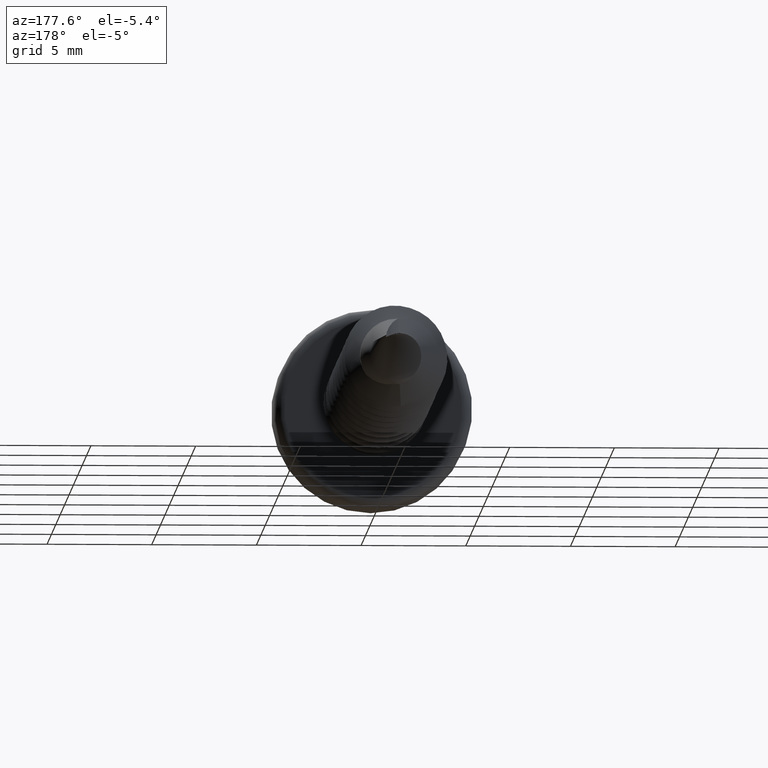
[diagram: clean part render]
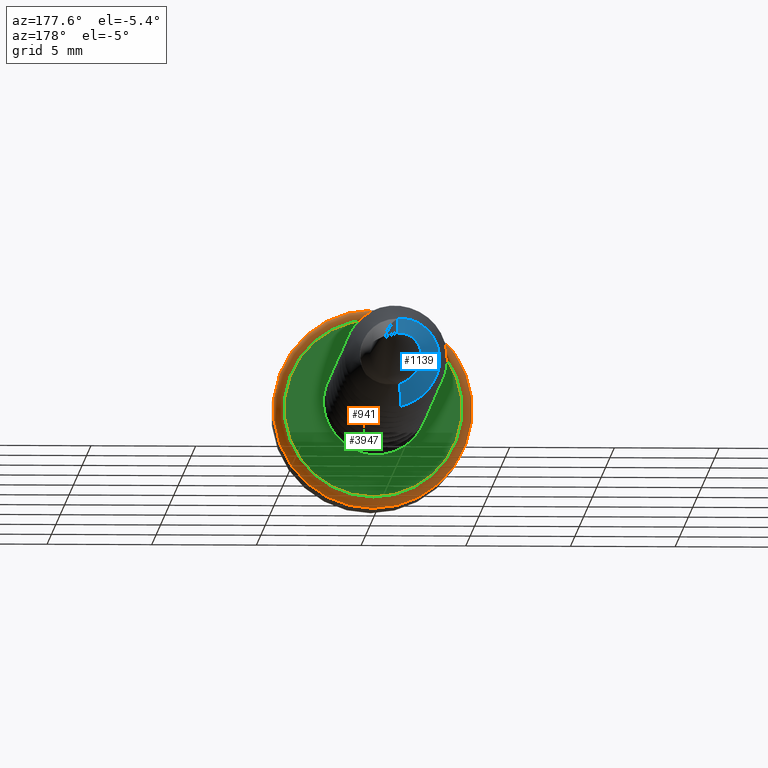
[diagram: same view with three faces highlighted in distinct colors, each labeled with its STEP entity id]
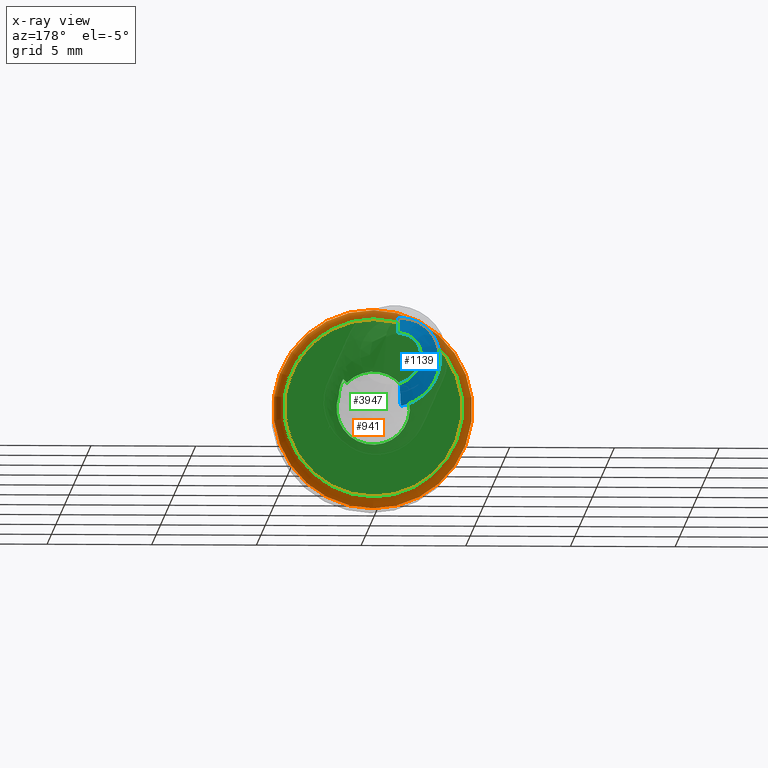
[diagram: x-ray of the same camera — body ghosted, the three highlighted faces saturated]
A machine part, auxiliary view with three faces highlighted in distinct colors.
The next image is the same camera in x-ray (body ghosted, the three faces saturated) — at least one of them is partly hidden behind the body in this view.
Their STEP definitions:

[orange] entity #941 — the highlighted toroidal blend (fillet) surface has major radius 4.25 mm and minor (blend) radius 0.5 mm.
#47 = AXIS2_PLACEMENT_3D ( 'NONE', #2755, #1521, #3463 ) ;
#758 = CARTESIAN_POINT ( 'NONE',  ( 0.000000000000000000, 3.299999999999999822, 0.000000000000000000 ) ) ;
#924 = AXIS2_PLACEMENT_3D ( 'NONE', #758, #1359, #3678 ) ;
#941 = ADVANCED_FACE ( 'NONE', ( #3915, #2743 ), #3801, .T. ) ;
#1359 = DIRECTION ( 'NONE',  ( -0.000000000000000000, -1.000000000000000000, -0.000000000000000000 ) ) ;
#1400 = CARTESIAN_POINT ( 'NONE',  ( 0.000000000000000000, 3.299999999999999822, 0.000000000000000000 ) ) ;
#1521 = DIRECTION ( 'NONE',  ( 0.000000000000000000, 1.000000000000000000, 0.000000000000000000 ) ) ;
#1890 = CARTESIAN_POINT ( 'NONE',  ( 0.000000000000000000, 3.299999999999999822, 4.749999999999999112 ) ) ;
#2013 = DIRECTION ( 'NONE',  ( 0.000000000000000000, 1.000000000000000000, 0.000000000000000000 ) ) ;
#2065 = EDGE_CURVE ( 'NONE', #3264, #3264, #4127, .T. ) ;
#2674 = DIRECTION ( 'NONE',  ( 0.000000000000000000, 0.000000000000000000, 1.000000000000000000 ) ) ;
#2743 = FACE_OUTER_BOUND ( 'NONE', #3244, .T. ) ;
#2755 = CARTESIAN_POINT ( 'NONE',  ( 0.000000000000000000, 3.799999999999999822, 0.000000000000000000 ) ) ;
#2850 = CARTESIAN_POINT ( 'NONE',  ( 0.000000000000000000, 3.799999999999999822, 4.249999999999998224 ) ) ;
#2914 = AXIS2_PLACEMENT_3D ( 'NONE', #1400, #2013, #2674 ) ;
#3244 = EDGE_LOOP ( 'NONE', ( #3290 ) ) ;
#3264 = VERTEX_POINT ( 'NONE', #1890 ) ;
#3290 = ORIENTED_EDGE ( 'NONE', *, *, #2065, .F. ) ;
#3463 = DIRECTION ( 'NONE',  ( 0.000000000000000000, 0.000000000000000000, 1.000000000000000000 ) ) ;
#3568 = CIRCLE ( 'NONE', #47, 4.249999999999998224 ) ;
#3661 = ORIENTED_EDGE ( 'NONE', *, *, #3952, .F. ) ;
#3678 = DIRECTION ( 'NONE',  ( 0.000000000000000000, 0.000000000000000000, 1.000000000000000000 ) ) ;
#3705 = EDGE_LOOP ( 'NONE', ( #3661 ) ) ;
#3801 = TOROIDAL_SURFACE ( 'NONE', #2914, 4.249999999999998224, 0.5000000000000000000 ) ;
#3879 = VERTEX_POINT ( 'NONE', #2850 ) ;
#3915 = FACE_OUTER_BOUND ( 'NONE', #3705, .T. ) ;
#3952 = EDGE_CURVE ( 'NONE', #3879, #3879, #3568, .T. ) ;
#4127 = CIRCLE ( 'NONE', #924, 4.749999999999999112 ) ;

[blue] entity #1139 — the highlighted face is a freeform B-spline surface patch.
#12 = EDGE_CURVE ( 'NONE', #167, #2429, #3433, .T. ) ;
#71 = CARTESIAN_POINT ( 'NONE',  ( -1.131080142599305338, 31.63333333333033437, 1.476056850587637914 ) ) ;
#72 = DIRECTION ( 'NONE',  ( 0.000000000000000000, -0.4999999999999867328, 0.8660254037844463681 ) ) ;
#167 = VERTEX_POINT ( 'NONE', #917 ) ;
#210 = CARTESIAN_POINT ( 'NONE',  ( -1.130129643550159102, 30.96666666666739687, -2.082345548311373307 ) ) ;
#233 = EDGE_CURVE ( 'NONE', #167, #960, #504, .T. ) ;
#240 = CARTESIAN_POINT ( 'NONE',  ( -0.4895064963969604221, 31.26823720570182275, -1.684133936802407971 ) ) ;
#248 = ORIENTED_EDGE ( 'NONE', *, *, #12, .F. ) ;
#250 = CARTESIAN_POINT ( 'NONE',  ( -0.6741099403907235832, 30.88328610388313322, -2.338630511723126748 ) ) ;
#257 = CARTESIAN_POINT ( 'NONE',  ( -0.1109964166129068647, 31.37735026918959846, -1.445745411716424567 ) ) ;
#273 = CARTESIAN_POINT ( 'NONE',  ( -0.7719652574579886073, 31.60744961406056319, -1.003242431223988484 ) ) ;
#281 = CARTESIAN_POINT ( 'NONE',  ( -0.6071034396000936084, 31.53075565104700928, -1.207061627406955662 ) ) ;
#334 = CARTESIAN_POINT ( 'NONE',  ( -0.2262075949405988884, 32.18089244603743282, 0.9347921821272321408 ) ) ;
#389 = CARTESIAN_POINT ( 'NONE',  ( -2.039233181404653372, 31.38333333333345720, 0.1757438282806784435 ) ) ;
#420 = CARTESIAN_POINT ( 'NONE',  ( 0.000000000000000000, 31.79999999999999361, 1.650000000000000133 ) ) ;
#504 = B_SPLINE_CURVE_WITH_KNOTS ( 'NONE', 3,
 ( #273, #281, #2192, #257 ),
 .UNSPECIFIED., .F., .F.,
 ( 4, 4 ),
 ( 0.02749647892905282553, 0.03571428571428572618 ),
 .UNSPECIFIED. ) ;
#517 = CARTESIAN_POINT ( 'NONE',  ( -0.4646270719521192194, 31.90820588943330094, 1.384062011148460503 ) ) ;
#528 = CARTESIAN_POINT ( 'NONE',  ( 0.000000000000000000, 31.79999999999999361, 1.649999999999999911 ) ) ;
#556 = CARTESIAN_POINT ( 'NONE',  ( -1.696955351722470695, 31.57578342306333141, 0.1489341323961499153 ) ) ;
#597 = CARTESIAN_POINT ( 'NONE',  ( -0.8341336116280866353, 32.03046608333626466, 0.6312075623731813190 ) ) ;
#654 = CARTESIAN_POINT ( 'NONE',  ( -0.9775086808971675811, 31.97815556129962644, 0.4474467012992903725 ) ) ;
#701 = VERTEX_POINT ( 'NONE', #420 ) ;
#728 = CARTESIAN_POINT ( 'NONE',  ( -1.859538903752156580, 31.46666666666965284, 0.7025201435991347276 ) ) ;
#770 = CARTESIAN_POINT ( 'NONE',  ( -0.1109964166129069063, 31.37735026918960557, -1.445745411716424345 ) ) ;
#835 = FACE_OUTER_BOUND ( 'NONE', #1329, .T. ) ;
#839 = CARTESIAN_POINT ( 'NONE',  ( -1.012399692358066705, 31.96068360252306206, 0.09531474062710368345 ) ) ;
#848 = DIRECTION ( 'NONE',  ( -0.06629359759711679623, -0.4999999999999867328, -0.8634843130698118818 ) ) ;
#863 = CARTESIAN_POINT ( 'NONE',  ( -0.3971914386354993276, 31.46072674424609517, -1.356875450150313744 ) ) ;
#876 = CARTESIAN_POINT ( 'NONE',  ( -1.131080142599305338, 31.63333333333033437, 1.476056850587637914 ) ) ;
#914 = CARTESIAN_POINT ( 'NONE',  ( -1.144825758539952387, 31.82114568088086060, -0.2076835784284497277 ) ) ;
#917 = CARTESIAN_POINT ( 'NONE',  ( -0.7719652574579886073, 31.60744961406056319, -1.003242431223988484 ) ) ;
#928 = CARTESIAN_POINT ( 'NONE',  ( -1.027394744220597067, 31.71410914178695606, -0.6380304059441181952 ) ) ;
#960 = VERTEX_POINT ( 'NONE', #1148 ) ;
#972 = CARTESIAN_POINT ( 'NONE',  ( -0.7719652574579886073, 31.60744961406056319, -1.003242431223988484 ) ) ;
#1137 = EDGE_CURVE ( 'NONE', #960, #2176, #2039, .T. ) ;
#1139 = ADVANCED_FACE ( 'NONE', ( #835 ), #4187, .F. ) ;
#1148 = CARTESIAN_POINT ( 'NONE',  ( -0.1109964166129068647, 31.37735026918959846, -1.445745411716424567 ) ) ;
#1163 = CARTESIAN_POINT ( 'NONE',  ( -1.534195861470589950, 31.65911675639952705, 0.5830126646515185751 ) ) ;
#1194 = CARTESIAN_POINT ( 'NONE',  ( 0.000000000000000000, 31.99245008972986781, 1.316666666666660657 ) ) ;
#1206 = CARTESIAN_POINT ( 'NONE',  ( -1.690481793448251224, 31.40911675639639000, -0.7084404909796142569 ) ) ;
#1226 = CARTESIAN_POINT ( 'NONE',  ( -0.1109964166129069063, 31.37735026918960557, -1.445745411716424345 ) ) ;
#1242 = CARTESIAN_POINT ( 'NONE',  ( -0.4549550407793461759, 32.13051989306662648, 0.8789324745329336608 ) ) ;
#1329 = EDGE_LOOP ( 'NONE', ( #248, #2078, #3252, #1821, #3281 ) ) ;
#1505 = CARTESIAN_POINT ( 'NONE',  ( -0.4905584335783642613, 32.21068360251994278, 0.6569701013835433923 ) ) ;
#1520 = CARTESIAN_POINT ( 'NONE',  ( -1.059527881872575739, 31.79401693585612421, -0.4375370764597092399 ) ) ;
#1534 = CARTESIAN_POINT ( 'NONE',  ( -0.5818109191929734525, 31.07575813241644980, -2.011384843104277564 ) ) ;
#1713 = CARTESIAN_POINT ( 'NONE',  ( -2.005958749236125271, 31.21666666666651935, -0.8438921982395749533 ) ) ;
#1750 = CARTESIAN_POINT ( 'NONE',  ( 0.000000000000000000, 32.37735026918959846, 0.6499999999999998002 ) ) ;
#1821 = ORIENTED_EDGE ( 'NONE', *, *, #3453, .F. ) ;
#1825 = CARTESIAN_POINT ( 'NONE',  ( -2.039233181404653372, 31.38333333333345720, 0.1757438282806784435 ) ) ;
#1841 = CARTESIAN_POINT ( 'NONE',  ( -0.8835097769074422569, 32.04401693585926125, 0.3439977067563249613 ) ) ;
#1850 = CARTESIAN_POINT ( 'NONE',  ( -1.524672871054878698, 31.32578342306245744, -1.129903342728623139 ) ) ;
#1864 = CARTESIAN_POINT ( 'NONE',  ( -1.797376057568881746, 31.13333333333257968, -1.335213576256263135 ) ) ;
#1963 = CARTESIAN_POINT ( 'NONE',  ( -0.1875456694493944643, 30.79999999999999716, -2.442811212900165785 ) ) ;
#2039 = LINE ( 'NONE', #770, #2348 ) ;
#2078 = ORIENTED_EDGE ( 'NONE', *, *, #233, .T. ) ;
#2091 = CARTESIAN_POINT ( 'NONE',  ( 0.000000000000000000, 32.22894191624430960, 0.9070508075688724636 ) ) ;
#2125 = CARTESIAN_POINT ( 'NONE',  ( -1.859538903752156580, 31.46666666666965284, 0.7025201435991347276 ) ) ;
#2169 = CARTESIAN_POINT ( 'NONE',  ( -0.9792664980268306341, 31.71068360252218810, -0.7192828756731652895 ) ) ;
#2176 = VERTEX_POINT ( 'NONE', #1963 ) ;
#2183 = CARTESIAN_POINT ( 'NONE',  ( -1.208852819189030869, 31.85156684612939415, 0.4635051857039363954 ) ) ;
#2192 = CARTESIAN_POINT ( 'NONE',  ( -0.3744087007271463818, 31.45408950658378799, -1.363950000322350808 ) ) ;
#2228 = EDGE_CURVE ( 'NONE', #2429, #701, #3610, .T. ) ;
#2348 = VECTOR ( 'NONE', #848, 1000.000000000000000 ) ;
#2429 = VERTEX_POINT ( 'NONE', #2091 ) ;
#2504 = CARTESIAN_POINT ( 'NONE',  ( -0.1365128342250692128, 31.18490017945973847, -1.778100678777668975 ) ) ;
#2518 = CARTESIAN_POINT ( 'NONE',  ( -0.1875456694493944365, 30.80000000000000071, -2.442811212900165785 ) ) ;
#2581 = CARTESIAN_POINT ( 'NONE',  ( -0.8508853813034488178, 31.63470496577765090, -0.9226605380166561510 ) ) ;
#2582 = B_SPLINE_CURVE_WITH_KNOTS ( 'NONE', 3,
 ( #2675, #2724, #71, #728, #389, #1713, #3321, #3975, #2689, #3012 ),
 .UNSPECIFIED., .F., .F.,
 ( 4, 2, 2, 2, 4 ),
 ( 0.000000000000000000, 0.008928571428571431545, 0.01785714285714286309, 0.02678571428571429464, 0.03571428571428572618 ),
 .UNSPECIFIED. ) ;
#2675 = CARTESIAN_POINT ( 'NONE',  ( 0.000000000000000000, 31.79999999999999361, 1.650000000000000133 ) ) ;
#2689 = CARTESIAN_POINT ( 'NONE',  ( -0.6741099403907235832, 30.88328610388313322, -2.338630511723126748 ) ) ;
#2724 = CARTESIAN_POINT ( 'NONE',  ( -0.5825157667129751138, 31.71571795130069660, 1.717425613065839185 ) ) ;
#2828 = CARTESIAN_POINT ( 'NONE',  ( -0.2290286626533850067, 32.29323248635704857, 0.7172942307564218467 ) ) ;
#2843 = CARTESIAN_POINT ( 'NONE',  ( -0.1620292518372314916, 30.99245008972987492, -2.110455945838912495 ) ) ;
#2855 = CARTESIAN_POINT ( 'NONE',  ( -0.5825157667129751138, 31.71571795130069660, 1.717425613065839185 ) ) ;
#2888 = CARTESIAN_POINT ( 'NONE',  ( 0.000000000000000000, 32.22894191624430960, 0.9070508075688724636 ) ) ;
#2905 = CARTESIAN_POINT ( 'NONE',  ( 0.000000000000000000, 32.37735026918959846, 0.6499999999999998002 ) ) ;
#2927 = CARTESIAN_POINT ( 'NONE',  ( -0.9180229548530515205, 31.66092180143642665, -0.8335235866220483958 ) ) ;
#3012 = CARTESIAN_POINT ( 'NONE',  ( -0.1875456694493944643, 30.79999999999999716, -2.442811212900165785 ) ) ;
#3123 = CARTESIAN_POINT ( 'NONE',  ( -1.354677522040296900, 31.76823351279319496, 0.1221244365116198050 ) ) ;
#3150 = CARTESIAN_POINT ( 'NONE',  ( -0.7040656699186566003, 32.01823351279007568, 0.9299990177848970196 ) ) ;
#3252 = ORIENTED_EDGE ( 'NONE', *, *, #1137, .T. ) ;
#3281 = ORIENTED_EDGE ( 'NONE', *, *, #2228, .F. ) ;
#3321 = CARTESIAN_POINT ( 'NONE',  ( -1.797376057568881746, 31.13333333333257968, -1.335213576256263135 ) ) ;
#3430 = CARTESIAN_POINT ( 'NONE',  ( -0.9691282817502218094, 31.15911675639726752, -1.781350726347502578 ) ) ;
#3433 = B_SPLINE_CURVE_WITH_KNOTS ( 'NONE', 3,
 ( #972, #2581, #2927, #928, #3519, #914, #4184, #654, #597, #1242, #334, #2888 ),
 .UNSPECIFIED., .F., .F.,
 ( 4, 2, 2, 2, 2, 4 ),
 ( 0.000000000000000000, 0.0003436933373370162892, 0.0006873866746740323616, 0.001374773349348059519, 0.002062160024022087219, 0.002749546698696114268 ),
 .UNSPECIFIED. ) ;
#3453 = EDGE_CURVE ( 'NONE', #701, #2176, #2582, .T. ) ;
#3462 = CARTESIAN_POINT ( 'NONE',  ( -0.6471255581504137266, 31.54401693585699817, -1.179361082419965845 ) ) ;
#3471 = CARTESIAN_POINT ( 'NONE',  ( -1.375004837660386059, 31.60156684612625710, -0.5729887837196548928 ) ) ;
#3519 = CARTESIAN_POINT ( 'NONE',  ( -1.068623370924414173, 31.74096204656507680, -0.5323289482947534124 ) ) ;
#3610 = LINE ( 'NONE', #2905, #3979 ) ;
#3780 = CARTESIAN_POINT ( 'NONE',  ( 0.000000000000000000, 32.18490017945973136, 0.9833333333333306170 ) ) ;
#3804 = CARTESIAN_POINT ( 'NONE',  ( -0.3467775153460962989, 32.10070998558922639, 1.050685482804407878 ) ) ;
#3820 = CARTESIAN_POINT ( 'NONE',  ( -2.005958749236125271, 31.21666666666651935, -0.8438921982395749533 ) ) ;
#3975 = CARTESIAN_POINT ( 'NONE',  ( -1.130129643550159102, 30.96666666666739687, -2.082345548311373307 ) ) ;
#3979 = VECTOR ( 'NONE', #72, 1000.000000000000000 ) ;
#4089 = CARTESIAN_POINT ( 'NONE',  ( -1.251969684540827688, 31.51823351279232099, -0.9245931092008807806 ) ) ;
#4119 = CARTESIAN_POINT ( 'NONE',  ( -0.8081269199503454681, 31.35156684612713107, -1.480355904383748200 ) ) ;
#4139 = CARTESIAN_POINT ( 'NONE',  ( -0.9175729062589771390, 31.82578342306020858, 1.203027934186279291 ) ) ;
#4184 = CARTESIAN_POINT ( 'NONE',  ( -1.133880650544414559, 31.87355444812049043, 0.02717003063810754376 ) ) ;
#4187 = B_SPLINE_SURFACE_WITH_KNOTS ( 'NONE', 3, 3, ( 
 ( #1750, #2828, #1505, #1841, #839, #1520, #2169, #3462, #863, #1226 ),
 ( #3780, #3804, #3150, #2183, #3123, #3471, #4089, #4119, #240, #2504 ),
 ( #1194, #517, #4139, #1163, #556, #1206, #1850, #3430, #1534, #2843 ),
 ( #528, #2855, #876, #2125, #1825, #3820, #1864, #210, #250, #2518 ) ),
 .UNSPECIFIED., .F., .F., .F.,
 ( 4, 4 ),
 ( 4, 2, 2, 2, 4 ),
 ( 0.000000000000000000, 1.000000000000000000 ),
 ( 0.000000000000000000, 0.008928571428571431545, 0.01785714285714286309, 0.02678571428571429464, 0.03571428571428572618 ),
 .UNSPECIFIED. ) ;

[green] entity #3947 — the highlighted planar face has unit normal (0, 1, 0).
#47 = AXIS2_PLACEMENT_3D ( 'NONE', #2755, #1521, #3463 ) ;
#152 = DIRECTION ( 'NONE',  ( 0.000000000000000000, 1.000000000000000000, 0.000000000000000000 ) ) ;
#323 = FACE_BOUND ( 'NONE', #1219, .T. ) ;
#343 = VERTEX_POINT ( 'NONE', #688 ) ;
#535 = AXIS2_PLACEMENT_3D ( 'NONE', #2737, #152, #2415 ) ;
#558 = B_SPLINE_CURVE_WITH_KNOTS ( 'NONE', 3,
 ( #1040, #1387, #1121, #1134, #785, #3409 ),
 .UNSPECIFIED., .F., .F.,
 ( 4, 2, 4 ),
 ( 0.001527847541478697963, 0.001944272453971408353, 0.002360697366464118742 ),
 .UNSPECIFIED. ) ;
#642 = VECTOR ( 'NONE', #3746, 1000.000000000000000 ) ;
#688 = CARTESIAN_POINT ( 'NONE',  ( 1.257331010310246411, 3.799999999999999378, 1.217217618387207434 ) ) ;
#785 = CARTESIAN_POINT ( 'NONE',  ( 1.502714751471069476, 3.799999999999989164, 1.267059834158433373 ) ) ;
#800 = AXIS2_PLACEMENT_3D ( 'NONE', #898, #1893, #2209 ) ;
#891 = CARTESIAN_POINT ( 'NONE',  ( 1.647460326310530521, 3.800000000000000266, 0.5902325585721615031 ) ) ;
#898 = CARTESIAN_POINT ( 'NONE',  ( 0.000000000000000000, 3.799999999999999378, 0.000000000000000000 ) ) ;
#1003 = ORIENTED_EDGE ( 'NONE', *, *, #3952, .T. ) ;
#1024 = EDGE_CURVE ( 'NONE', #3563, #343, #1673, .T. ) ;
#1040 = CARTESIAN_POINT ( 'NONE',  ( 1.647460326310530521, 3.800000000000000266, 0.5902325585721615031 ) ) ;
#1121 = CARTESIAN_POINT ( 'NONE',  ( 1.623900966049084627, 3.800000000000002931, 0.8692315877920703260 ) ) ;
#1134 = CARTESIAN_POINT ( 'NONE',  ( 1.553012999494170154, 3.800000000000001155, 1.137793078372940858 ) ) ;
#1162 = VERTEX_POINT ( 'NONE', #891 ) ;
#1176 = ORIENTED_EDGE ( 'NONE', *, *, #1578, .T. ) ;
#1219 = EDGE_LOOP ( 'NONE', ( #1684, #3508, #1176 ) ) ;
#1387 = CARTESIAN_POINT ( 'NONE',  ( 1.644164745300556341, 3.799999999999997602, 0.7291133378011305233 ) ) ;
#1521 = DIRECTION ( 'NONE',  ( 0.000000000000000000, 1.000000000000000000, 0.000000000000000000 ) ) ;
#1578 = EDGE_CURVE ( 'NONE', #343, #1162, #2769, .T. ) ;
#1673 = LINE ( 'NONE', #1774, #642 ) ;
#1684 = ORIENTED_EDGE ( 'NONE', *, *, #3589, .T. ) ;
#1774 = CARTESIAN_POINT ( 'NONE',  ( 2.451979111858596738, 3.799999999999999822, 2.373752138774699372 ) ) ;
#1893 = DIRECTION ( 'NONE',  ( -0.000000000000000000, -1.000000000000000000, -0.000000000000000000 ) ) ;
#2029 = CARTESIAN_POINT ( 'NONE',  ( 1.436949726068850630, 3.799999999999988720, 1.391105849585377641 ) ) ;
#2086 = PLANE ( 'NONE',  #535 ) ;
#2209 = DIRECTION ( 'NONE',  ( 0.000000000000000000, 0.000000000000000000, -1.000000000000000000 ) ) ;
#2415 = DIRECTION ( 'NONE',  ( 0.000000000000000000, -0.000000000000000000, 1.000000000000000000 ) ) ;
#2737 = CARTESIAN_POINT ( 'NONE',  ( 4.749999999999999112, 3.799999999999999822, 0.000000000000000000 ) ) ;
#2755 = CARTESIAN_POINT ( 'NONE',  ( 0.000000000000000000, 3.799999999999999822, 0.000000000000000000 ) ) ;
#2769 = CIRCLE ( 'NONE', #800, 1.750000000000002887 ) ;
#2850 = CARTESIAN_POINT ( 'NONE',  ( 0.000000000000000000, 3.799999999999999822, 4.249999999999998224 ) ) ;
#3409 = CARTESIAN_POINT ( 'NONE',  ( 1.436949726068850630, 3.799999999999988720, 1.391105849585377641 ) ) ;
#3416 = EDGE_LOOP ( 'NONE', ( #1003 ) ) ;
#3463 = DIRECTION ( 'NONE',  ( 0.000000000000000000, 0.000000000000000000, 1.000000000000000000 ) ) ;
#3508 = ORIENTED_EDGE ( 'NONE', *, *, #1024, .T. ) ;
#3563 = VERTEX_POINT ( 'NONE', #2029 ) ;
#3568 = CIRCLE ( 'NONE', #47, 4.249999999999998224 ) ;
#3589 = EDGE_CURVE ( 'NONE', #1162, #3563, #558, .T. ) ;
#3712 = FACE_OUTER_BOUND ( 'NONE', #3416, .T. ) ;
#3746 = DIRECTION ( 'NONE',  ( -0.7184748630344253151, 0.000000000000000000, -0.6955529247926888203 ) ) ;
#3879 = VERTEX_POINT ( 'NONE', #2850 ) ;
#3947 = ADVANCED_FACE ( 'NONE', ( #3712, #323 ), #2086, .T. ) ;
#3952 = EDGE_CURVE ( 'NONE', #3879, #3879, #3568, .T. ) ;